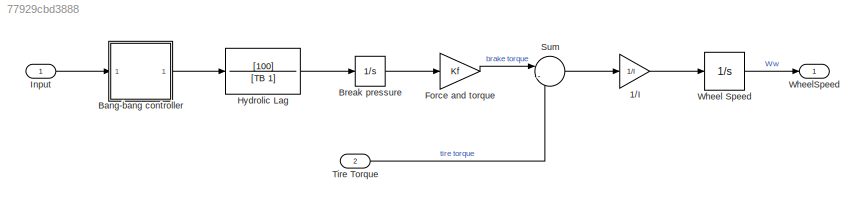
MODEL slx_77929cbd3888
KIND model
CONFIG AbsTol = auto
CONFIG EnableMultiTasking = off
CONFIG FixedStep = auto
CONFIG MaxStep = auto
CONFIG MinStep = auto
CONFIG RelTol = 1e-3
CONFIG SampleTimeConstraint = Unconstrained
CONFIG Solver = VariableStepAuto
CONFIG SolverName = VariableStepAuto
CONFIG StartTime = 0.0
CONFIG StopTime = 25
BLOCK [Gain] 1//I
  Gain = 1/I
  OutDataTypeStr = Inherit: Same as input
  ParamDataTypeStr = Inherit: Same as input
  SaturateOnIntegerOverflow = on
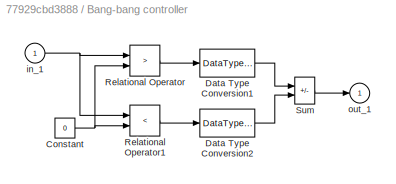
BLOCK [SubSystem] Bang-bang controller
  Ports = [1, 1]
  RequestExecContextInheritance = off
  ShowPortLabels = none
BLOCK [Constant] Bang-bang controller/Constant
  Value = 0
BLOCK [DataTypeConversion] Bang-bang controller/Data Type Conversion1
  OutDataTypeStr = double
BLOCK [DataTypeConversion] Bang-bang controller/Data Type Conversion2
  OutDataTypeStr = double
BLOCK [RelationalOperator] Bang-bang controller/Relational Operator
  Operator = >
  OutDataTypeStr = boolean
  Ports = [2, 1]
BLOCK [RelationalOperator] Bang-bang controller/Relational Operator1
  Operator = <
  OutDataTypeStr = boolean
  Ports = [2, 1]
BLOCK [Sum] Bang-bang controller/Sum
  IconShape = rectangular
  InputSameDT = on
  Inputs = +-
  OutDataTypeStr = Inherit: Same as first input
  Ports = [2, 1]
  SaturateOnIntegerOverflow = on
BLOCK [Inport] Bang-bang controller/in_1
BLOCK [Outport] Bang-bang controller/out_1
  InitialOutput = 0
  VectorParamsAs1DForOutWhenUnconnected = off
BLOCK [Integrator] Break pressure
  LimitOutput = on
  LowerSaturationLimit = 0
  Ports = [1, 1]
  UpperSaturationLimit = PBmax
BLOCK [Gain] Force and torque
  Gain = Kf
  OutDataTypeStr = Inherit: Same as input
  ParamDataTypeStr = Inherit: Same as input
  SaturateOnIntegerOverflow = on
BLOCK [TransferFcn] Hydrolic Lag
  Denominator = [TB 1]
  Numerator = [100]
BLOCK [Inport] Input
  OutDataTypeStr = double
  PortDimensions = 1
  SampleTime = 0
  SamplingMode = Sample based
  SignalType = real
BLOCK [Sum] Sum
  Inputs = |-+
  Ports = [2, 1]
BLOCK [Inport] Tire Torque
  OutDataTypeStr = double
  Port = 2
  PortDimensions = 1
  SampleTime = 0
  SamplingMode = Sample based
  SignalType = real
BLOCK [Integrator] Wheel Speed
  InitialCondition = v0/Rr
  LimitOutput = on
  LowerSaturationLimit = 0
  Ports = [1, 1]
  UpperSaturationLimit = 1000
BLOCK [Outport] WheelSpeed
  OutDataTypeStr = double
  PortDimensions = 1
  SampleTime = 0
  SamplingMode = Sample based
  SignalType = real
  VectorParamsAs1DForOutWhenUnconnected = off
LINE 1//I:1 -> Wheel Speed:1
NET Bang-bang controller/Constant:1 -> Bang-bang controller/Relational Operator1:2, Bang-bang controller/Relational Operator:2
LINE Bang-bang controller/Data Type Conversion1:1 -> Bang-bang controller/Sum:1
LINE Bang-bang controller/Data Type Conversion2:1 -> Bang-bang controller/Sum:2
LINE Bang-bang controller/Relational Operator1:1 -> Bang-bang controller/Data Type Conversion2:1
LINE Bang-bang controller/Relational Operator:1 -> Bang-bang controller/Data Type Conversion1:1
LINE Bang-bang controller/Sum:1 -> Bang-bang controller/out_1:1
NET Bang-bang controller/in_1:1 -> Bang-bang controller/Relational Operator1:1, Bang-bang controller/Relational Operator:1
LINE Bang-bang controller:1 -> Hydrolic Lag:1
LINE Break pressure:1 -> Force and torque:1
LINE Force and torque:1 -> Sum:1
LINE Hydrolic Lag:1 -> Break pressure:1
LINE Input:1 -> Bang-bang controller:1
LINE Sum:1 -> 1//I:1
LINE Tire Torque:1 -> Sum:2
LINE Wheel Speed:1 -> WheelSpeed:1
note: NET lines group one-source signal fan-out (src -> all destinations, sorted); 1:1 wires keep LINE
